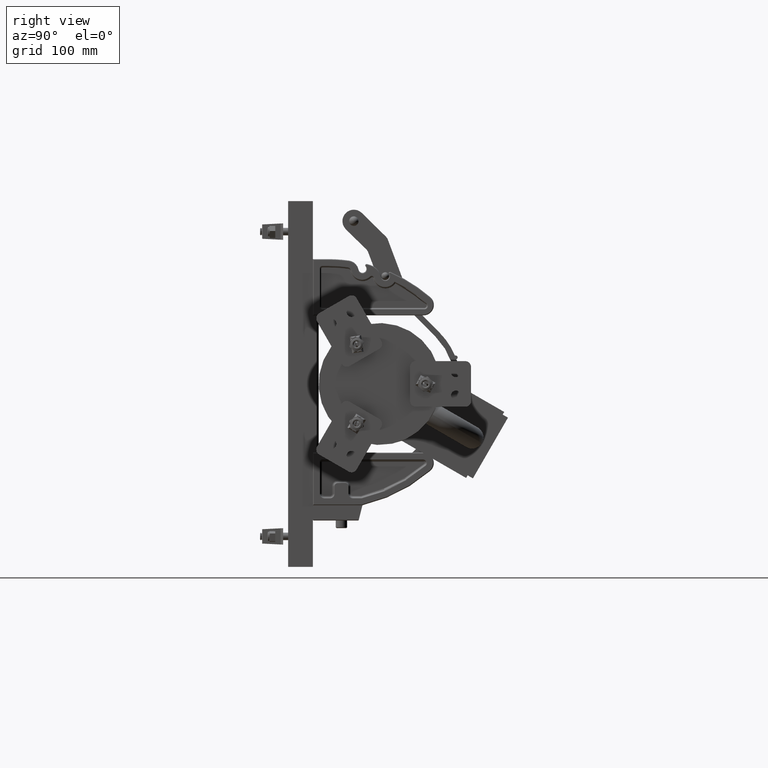
[diagram: clean part render]
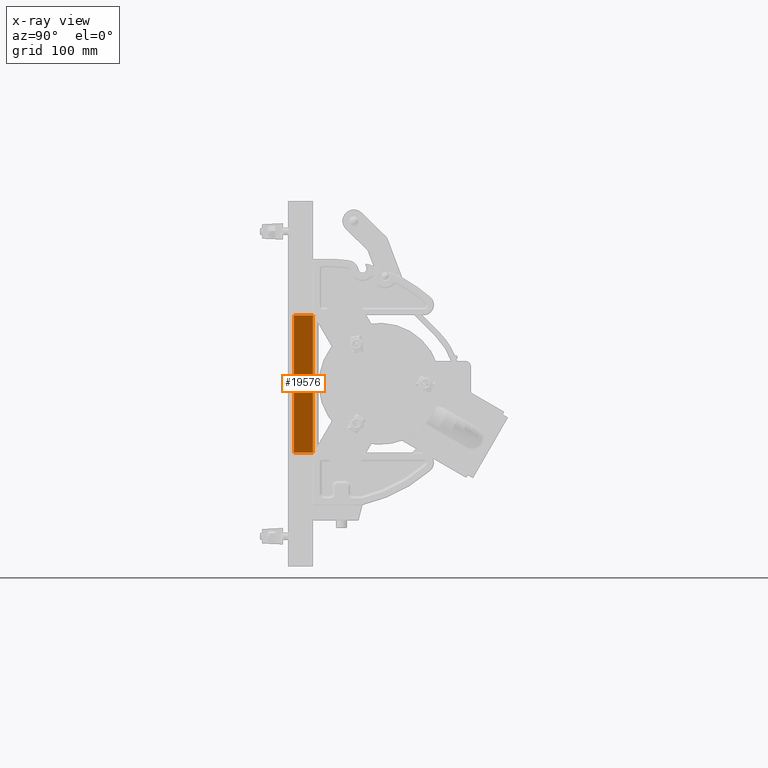
[diagram: x-ray — body ghosted, one internal face saturated and labeled with its STEP entity id]
A machine part, right view, then the same camera in x-ray: the body is ghosted and one INTERNAL B-rep face — a face not visible from any outside direction — is saturated and labeled: STEP entity #19576.
In plain terms, the highlighted planar face has unit normal (0.9344, 0.3561, 0).
Its self-contained STEP definition (entity closure, byte-faithful):
#579 = EDGE_CURVE ( 'NONE', #41480, #19134, #37547, .T. ) ;
#1366 = CARTESIAN_POINT ( 'NONE',  ( 0.2380000000000001300, -0.8125000000000000000, -2.250000000000000000 ) ) ;
#2538 = VERTEX_POINT ( 'NONE', #38117 ) ;
#3094 = ORIENTED_EDGE ( 'NONE', *, *, #13750, .F. ) ;
#5234 = AXIS2_PLACEMENT_3D ( 'NONE', #27064, #47871, #35468 ) ;
#7784 = CARTESIAN_POINT ( 'NONE',  ( 4.370956789862821100E-015, -0.1880000000000018000, -2.250000000000000000 ) ) ;
#7797 = EDGE_CURVE ( 'NONE', #15518, #2538, #53780, .T. ) ;
#13750 = EDGE_CURVE ( 'NONE', #19134, #2538, #21560, .T. ) ;
#15518 = VERTEX_POINT ( 'NONE', #7784 ) ;
#18506 = CARTESIAN_POINT ( 'NONE',  ( 4.370956789862821100E-015, -0.1880000000000018000, 2.250000000000000000 ) ) ;
#19134 = VERTEX_POINT ( 'NONE', #19672 ) ;
#19496 = CARTESIAN_POINT ( 'NONE',  ( 0.2380000000000001300, -0.8125000000000000000, 2.250000000000000000 ) ) ;
#19576 = ADVANCED_FACE ( 'NONE', ( #44640 ), #31250, .F. ) ;
#19672 = CARTESIAN_POINT ( 'NONE',  ( 0.2380000000000001300, -0.8125000000000000000, 2.250000000000000000 ) ) ;
#20852 = ORIENTED_EDGE ( 'NONE', *, *, #579, .F. ) ;
#21560 = LINE ( 'NONE', #33143, #53509 ) ;
#25614 = ORIENTED_EDGE ( 'NONE', *, *, #7797, .T. ) ;
#26442 = VECTOR ( 'NONE', #36267, 39.37007874015748900 ) ;
#26861 = DIRECTION ( 'NONE',  ( -0.0000000000000000000, -0.0000000000000000000, -1.000000000000000000 ) ) ;
#27064 = CARTESIAN_POINT ( 'NONE',  ( 0.2380000000000001300, -0.8125000000000000000, 2.250000000000000000 ) ) ;
#30538 = CARTESIAN_POINT ( 'NONE',  ( 4.370956789862821100E-015, -0.1880000000000018000, 2.250000000000000000 ) ) ;
#31250 = PLANE ( 'NONE',  #5234 ) ;
#31570 = VECTOR ( 'NONE', #51326, 39.37007874015748900 ) ;
#33143 = CARTESIAN_POINT ( 'NONE',  ( 0.2380000000000001300, -0.8125000000000000000, 2.250000000000000000 ) ) ;
#35468 = DIRECTION ( 'NONE',  ( -0.3561197693169032000, 0.9344403190689469800, 0.0000000000000000000 ) ) ;
#35624 = EDGE_LOOP ( 'NONE', ( #25614, #3094, #20852, #43401 ) ) ;
#35966 = EDGE_CURVE ( 'NONE', #41480, #15518, #48393, .T. ) ;
#36267 = DIRECTION ( 'NONE',  ( 0.3561197693169032000, -0.9344403190689469800, -0.0000000000000000000 ) ) ;
#37547 = LINE ( 'NONE', #19496, #26442 ) ;
#38117 = CARTESIAN_POINT ( 'NONE',  ( 0.2380000000000001300, -0.8125000000000000000, -2.250000000000000000 ) ) ;
#41480 = VERTEX_POINT ( 'NONE', #30538 ) ;
#42533 = VECTOR ( 'NONE', #26861, 39.37007874015748100 ) ;
#43401 = ORIENTED_EDGE ( 'NONE', *, *, #35966, .T. ) ;
#44640 = FACE_OUTER_BOUND ( 'NONE', #35624, .T. ) ;
#45750 = DIRECTION ( 'NONE',  ( -0.0000000000000000000, -0.0000000000000000000, -1.000000000000000000 ) ) ;
#47871 = DIRECTION ( 'NONE',  ( 0.9344403190689470900, 0.3561197693169032600, -0.0000000000000000000 ) ) ;
#48393 = LINE ( 'NONE', #18506, #42533 ) ;
#51326 = DIRECTION ( 'NONE',  ( 0.3561197693169032000, -0.9344403190689469800, -0.0000000000000000000 ) ) ;
#53509 = VECTOR ( 'NONE', #45750, 39.37007874015748100 ) ;
#53780 = LINE ( 'NONE', #1366, #31570 ) ;